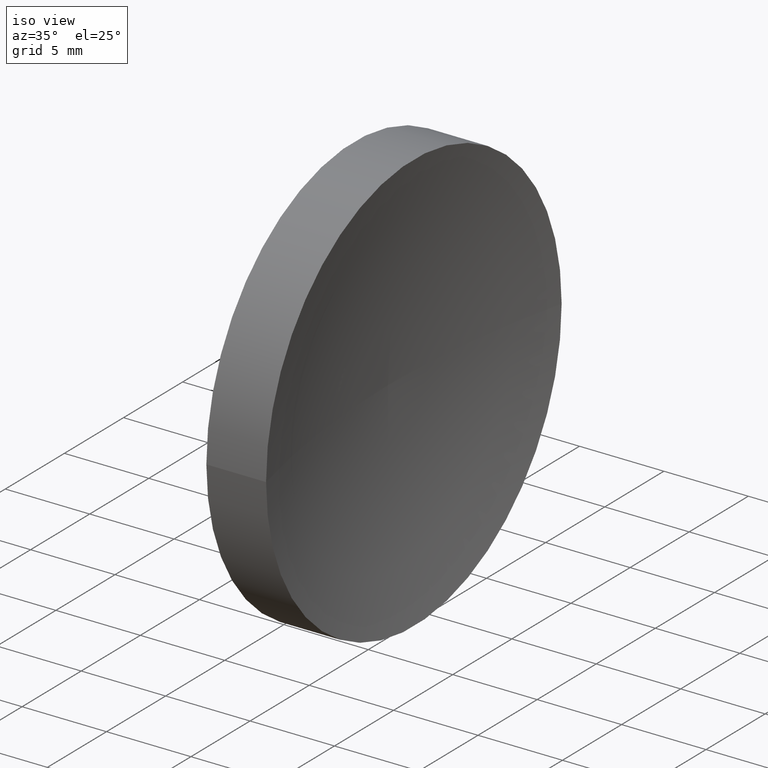
[diagram: clean part render]
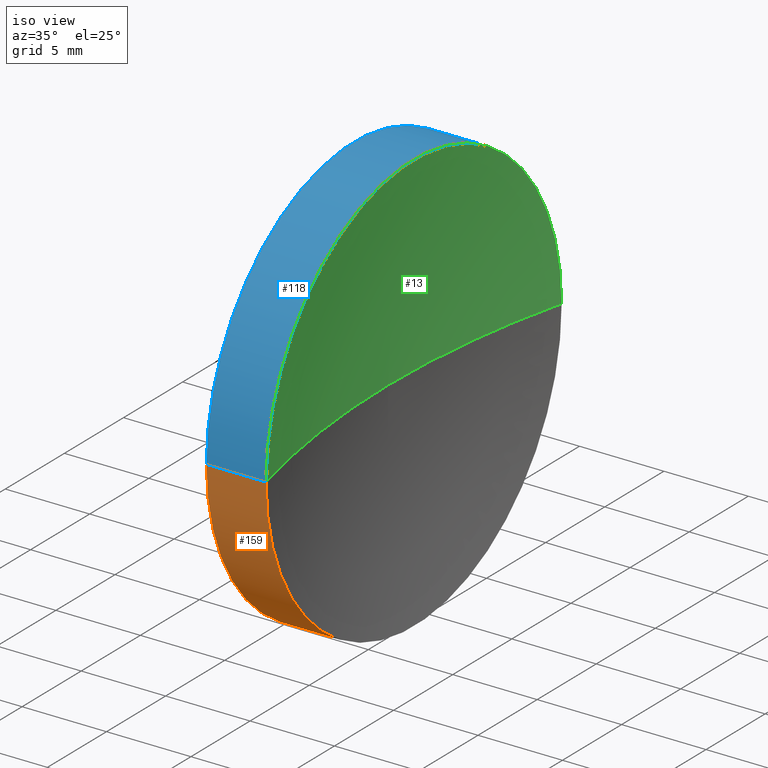
[diagram: same view with three faces highlighted in distinct colors, each labeled with its STEP entity id]
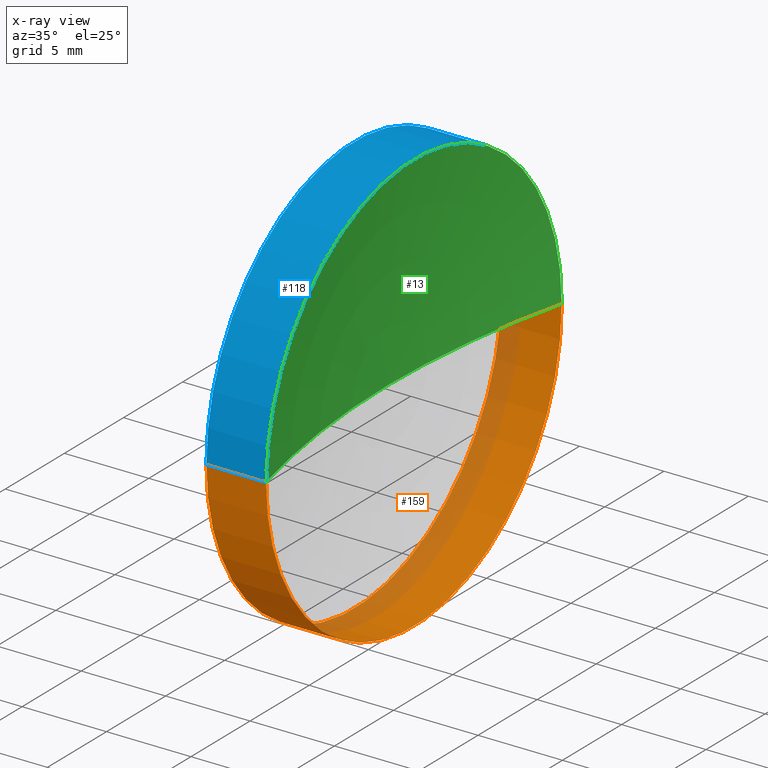
[diagram: x-ray of the same camera — body ghosted, the three highlighted faces saturated]
A machine part, iso view with three faces highlighted in distinct colors.
The next image is the same camera in x-ray (body ghosted, the three faces saturated) — at least one of them is partly hidden behind the body in this view.
Their STEP definitions:

[orange] entity #159 — the highlighted cylindrical surface (partial cylindrical patch) has radius 12.5 mm, axis along (-1, 0, -0).
#16 = CARTESIAN_POINT ( 'NONE',  ( 55.00739462442118800, 45.07872591329309100, 1.530808498934191500E-015 ) ) ;
#17 = CYLINDRICAL_SURFACE ( 'NONE', #65, 12.50000000000000000 ) ;
#20 = EDGE_LOOP ( 'NONE', ( #100, #132, #155, #39 ) ) ;
#21 = DIRECTION ( 'NONE',  ( -1.000000000000000000, 7.636108817321419600E-016, -0.0000000000000000000 ) ) ;
#26 = FACE_OUTER_BOUND ( 'NONE', #20, .T. ) ;
#28 = CIRCLE ( 'NONE', #152, 12.50000000000000400 ) ;
#31 = CARTESIAN_POINT ( 'NONE',  ( 57.35819015802111000, 32.57872591329309800, 0.0000000000000000000 ) ) ;
#32 = DIRECTION ( 'NONE',  ( -5.551115123125784700E-016, -1.000000000000000000, 0.0000000000000000000 ) ) ;
#35 = CARTESIAN_POINT ( 'NONE',  ( 60.89443551505594600, 45.07872591329309800, 1.530808498934192300E-015 ) ) ;
#36 = EDGE_CURVE ( 'NONE', #94, #99, #165, .T. ) ;
#39 = ORIENTED_EDGE ( 'NONE', *, *, #46, .F. ) ;
#46 = EDGE_CURVE ( 'NONE', #128, #99, #59, .T. ) ;
#50 = DIRECTION ( 'NONE',  ( -5.551115123125780700E-016, -1.000000000000000000, 0.0000000000000000000 ) ) ;
#52 = CARTESIAN_POINT ( 'NONE',  ( 60.89443551505593200, 20.07872591329308100, 0.0000000000000000000 ) ) ;
#56 = LINE ( 'NONE', #16, #156 ) ;
#57 = AXIS2_PLACEMENT_3D ( 'NONE', #31, #139, #32 ) ;
#59 = CIRCLE ( 'NONE', #57, 12.49999999999999600 ) ;
#65 = AXIS2_PLACEMENT_3D ( 'NONE', #164, #98, #83 ) ;
#68 = DIRECTION ( 'NONE',  ( -1.000000000000000000, 7.636108817321419600E-016, -0.0000000000000000000 ) ) ;
#76 = CARTESIAN_POINT ( 'NONE',  ( 55.00739462442117400, 20.07872591329309500, 0.0000000000000000000 ) ) ;
#83 = DIRECTION ( 'NONE',  ( -5.551115123125782700E-016, -1.000000000000000000, 0.0000000000000000000 ) ) ;
#92 = VECTOR ( 'NONE', #21, 1000.000000000000000 ) ;
#94 = VERTEX_POINT ( 'NONE', #52 ) ;
#98 = DIRECTION ( 'NONE',  ( -1.000000000000000000, 7.636108817321419600E-016, -0.0000000000000000000 ) ) ;
#99 = VERTEX_POINT ( 'NONE', #137 ) ;
#100 = ORIENTED_EDGE ( 'NONE', *, *, #146, .F. ) ;
#102 = EDGE_CURVE ( 'NONE', #135, #94, #28, .T. ) ;
#107 = DIRECTION ( 'NONE',  ( -1.000000000000000000, 7.636108817321419600E-016, -0.0000000000000000000 ) ) ;
#120 = CARTESIAN_POINT ( 'NONE',  ( 60.89443551505593900, 32.57872591329309100, 0.0000000000000000000 ) ) ;
#128 = VERTEX_POINT ( 'NONE', #150 ) ;
#132 = ORIENTED_EDGE ( 'NONE', *, *, #102, .T. ) ;
#135 = VERTEX_POINT ( 'NONE', #35 ) ;
#137 = CARTESIAN_POINT ( 'NONE',  ( 57.35819015802110200, 20.07872591329309800, 0.0000000000000000000 ) ) ;
#139 = DIRECTION ( 'NONE',  ( -1.000000000000000000, 7.636108817321419600E-016, -0.0000000000000000000 ) ) ;
#146 = EDGE_CURVE ( 'NONE', #135, #128, #56, .T. ) ;
#150 = CARTESIAN_POINT ( 'NONE',  ( 57.35819015802111700, 45.07872591329309100, 1.530808498934191900E-015 ) ) ;
#152 = AXIS2_PLACEMENT_3D ( 'NONE', #120, #68, #50 ) ;
#155 = ORIENTED_EDGE ( 'NONE', *, *, #36, .T. ) ;
#156 = VECTOR ( 'NONE', #107, 1000.000000000000000 ) ;
#159 = ADVANCED_FACE ( 'NONE', ( #26 ), #17, .T. ) ;
#164 = CARTESIAN_POINT ( 'NONE',  ( 55.00739462442118100, 32.57872591329309800, 0.0000000000000000000 ) ) ;
#165 = LINE ( 'NONE', #76, #92 ) ;

[blue] entity #118 — the highlighted cylindrical surface (partial cylindrical patch) has radius 12.5 mm, axis along (-1, 0, -0).
#15 = DIRECTION ( 'NONE',  ( -5.551115123125782700E-016, -1.000000000000000000, 0.0000000000000000000 ) ) ;
#16 = CARTESIAN_POINT ( 'NONE',  ( 55.00739462442118800, 45.07872591329309100, 1.530808498934191500E-015 ) ) ;
#18 = AXIS2_PLACEMENT_3D ( 'NONE', #69, #162, #15 ) ;
#21 = DIRECTION ( 'NONE',  ( -1.000000000000000000, 7.636108817321419600E-016, -0.0000000000000000000 ) ) ;
#23 = ORIENTED_EDGE ( 'NONE', *, *, #36, .F. ) ;
#29 = CIRCLE ( 'NONE', #58, 12.49999999999999600 ) ;
#35 = CARTESIAN_POINT ( 'NONE',  ( 60.89443551505594600, 45.07872591329309800, 1.530808498934192300E-015 ) ) ;
#36 = EDGE_CURVE ( 'NONE', #94, #99, #165, .T. ) ;
#42 = DIRECTION ( 'NONE',  ( -5.551115123125780700E-016, -1.000000000000000000, 0.0000000000000000000 ) ) ;
#47 = FACE_OUTER_BOUND ( 'NONE', #51, .T. ) ;
#51 = EDGE_LOOP ( 'NONE', ( #80, #153, #85, #23 ) ) ;
#52 = CARTESIAN_POINT ( 'NONE',  ( 60.89443551505593200, 20.07872591329308100, 0.0000000000000000000 ) ) ;
#53 = CARTESIAN_POINT ( 'NONE',  ( 57.35819015802111000, 32.57872591329309800, 0.0000000000000000000 ) ) ;
#56 = LINE ( 'NONE', #16, #156 ) ;
#58 = AXIS2_PLACEMENT_3D ( 'NONE', #53, #147, #96 ) ;
#64 = AXIS2_PLACEMENT_3D ( 'NONE', #138, #82, #42 ) ;
#69 = CARTESIAN_POINT ( 'NONE',  ( 55.00739462442118100, 32.57872591329309800, 0.0000000000000000000 ) ) ;
#76 = CARTESIAN_POINT ( 'NONE',  ( 55.00739462442117400, 20.07872591329309500, 0.0000000000000000000 ) ) ;
#80 = ORIENTED_EDGE ( 'NONE', *, *, #89, .T. ) ;
#82 = DIRECTION ( 'NONE',  ( -1.000000000000000000, 7.636108817321419600E-016, -0.0000000000000000000 ) ) ;
#85 = ORIENTED_EDGE ( 'NONE', *, *, #115, .F. ) ;
#89 = EDGE_CURVE ( 'NONE', #94, #135, #93, .T. ) ;
#90 = CYLINDRICAL_SURFACE ( 'NONE', #18, 12.50000000000000000 ) ;
#92 = VECTOR ( 'NONE', #21, 1000.000000000000000 ) ;
#93 = CIRCLE ( 'NONE', #64, 12.50000000000000400 ) ;
#94 = VERTEX_POINT ( 'NONE', #52 ) ;
#96 = DIRECTION ( 'NONE',  ( -5.551115123125784700E-016, -1.000000000000000000, 0.0000000000000000000 ) ) ;
#99 = VERTEX_POINT ( 'NONE', #137 ) ;
#107 = DIRECTION ( 'NONE',  ( -1.000000000000000000, 7.636108817321419600E-016, -0.0000000000000000000 ) ) ;
#115 = EDGE_CURVE ( 'NONE', #99, #128, #29, .T. ) ;
#118 = ADVANCED_FACE ( 'NONE', ( #47 ), #90, .T. ) ;
#128 = VERTEX_POINT ( 'NONE', #150 ) ;
#135 = VERTEX_POINT ( 'NONE', #35 ) ;
#137 = CARTESIAN_POINT ( 'NONE',  ( 57.35819015802110200, 20.07872591329309800, 0.0000000000000000000 ) ) ;
#138 = CARTESIAN_POINT ( 'NONE',  ( 60.89443551505593900, 32.57872591329309100, 0.0000000000000000000 ) ) ;
#146 = EDGE_CURVE ( 'NONE', #135, #128, #56, .T. ) ;
#147 = DIRECTION ( 'NONE',  ( -1.000000000000000000, 7.636108817321419600E-016, -0.0000000000000000000 ) ) ;
#150 = CARTESIAN_POINT ( 'NONE',  ( 57.35819015802111700, 45.07872591329309100, 1.530808498934191900E-015 ) ) ;
#153 = ORIENTED_EDGE ( 'NONE', *, *, #146, .T. ) ;
#156 = VECTOR ( 'NONE', #107, 1000.000000000000000 ) ;
#162 = DIRECTION ( 'NONE',  ( -1.000000000000000000, 7.636108817321419600E-016, -0.0000000000000000000 ) ) ;
#165 = LINE ( 'NONE', #76, #92 ) ;

[green] entity #13 — the highlighted toroidal blend (fillet) surface has major radius 0.0021 mm and minor (blend) radius 51.64 mm.
#4 = EDGE_LOOP ( 'NONE', ( #101, #72, #66 ) ) ;
#7 = CARTESIAN_POINT ( 'NONE',  ( 110.9981901286809900, 32.57659115087562200, -2.614329961451197500E-019 ) ) ;
#11 = AXIS2_PLACEMENT_3D ( 'NONE', #7, #81, #149 ) ;
#13 = ADVANCED_FACE ( 'NONE', ( #73 ), #130, .F. ) ;
#24 = CIRCLE ( 'NONE', #11, 51.64000000000000800 ) ;
#35 = CARTESIAN_POINT ( 'NONE',  ( 60.89443551505594600, 45.07872591329309800, 1.530808498934192300E-015 ) ) ;
#38 = EDGE_CURVE ( 'NONE', #94, #109, #87, .T. ) ;
#41 = CARTESIAN_POINT ( 'NONE',  ( 110.9981901286809900, 32.58086067571049000, 0.0000000000000000000 ) ) ;
#42 = DIRECTION ( 'NONE',  ( -5.551115123125780700E-016, -1.000000000000000000, 0.0000000000000000000 ) ) ;
#52 = CARTESIAN_POINT ( 'NONE',  ( 60.89443551505593200, 20.07872591329308100, 0.0000000000000000000 ) ) ;
#54 = CARTESIAN_POINT ( 'NONE',  ( 59.35819017280580600, 32.57872591329309800, 0.0000000000000000000 ) ) ;
#64 = AXIS2_PLACEMENT_3D ( 'NONE', #138, #82, #42 ) ;
#66 = ORIENTED_EDGE ( 'NONE', *, *, #38, .T. ) ;
#67 = DIRECTION ( 'NONE',  ( -1.000000000000000000, 0.0000000000000000000, 0.0000000000000000000 ) ) ;
#72 = ORIENTED_EDGE ( 'NONE', *, *, #89, .F. ) ;
#73 = FACE_OUTER_BOUND ( 'NONE', #4, .T. ) ;
#77 = DIRECTION ( 'NONE',  ( -7.636108817321419600E-016, -1.000000000000000000, 0.0000000000000000000 ) ) ;
#79 = AXIS2_PLACEMENT_3D ( 'NONE', #129, #143, #77 ) ;
#81 = DIRECTION ( 'NONE',  ( -9.351536221073556900E-032, -1.224646799147353200E-016, 1.000000000000000000 ) ) ;
#82 = DIRECTION ( 'NONE',  ( -1.000000000000000000, 7.636108817321419600E-016, -0.0000000000000000000 ) ) ;
#87 = CIRCLE ( 'NONE', #126, 51.64000000000000800 ) ;
#89 = EDGE_CURVE ( 'NONE', #94, #135, #93, .T. ) ;
#93 = CIRCLE ( 'NONE', #64, 12.50000000000000400 ) ;
#94 = VERTEX_POINT ( 'NONE', #52 ) ;
#101 = ORIENTED_EDGE ( 'NONE', *, *, #110, .F. ) ;
#109 = VERTEX_POINT ( 'NONE', #54 ) ;
#110 = EDGE_CURVE ( 'NONE', #135, #109, #24, .T. ) ;
#126 = AXIS2_PLACEMENT_3D ( 'NONE', #41, #140, #67 ) ;
#129 = CARTESIAN_POINT ( 'NONE',  ( 110.9981901286809900, 32.57872591329305600, 0.0000000000000000000 ) ) ;
#130 = TOROIDAL_SURFACE ( 'NONE', #79, -0.002134762417434476400, 51.64000000000000800 ) ;
#135 = VERTEX_POINT ( 'NONE', #35 ) ;
#138 = CARTESIAN_POINT ( 'NONE',  ( 60.89443551505593900, 32.57872591329309100, 0.0000000000000000000 ) ) ;
#140 = DIRECTION ( 'NONE',  ( 0.0000000000000000000, -0.0000000000000000000, -1.000000000000000000 ) ) ;
#143 = DIRECTION ( 'NONE',  ( -1.000000000000000000, 7.636108817321419600E-016, -0.0000000000000000000 ) ) ;
#149 = DIRECTION ( 'NONE',  ( 0.0000000000000000000, -1.000000000000000000, -1.224646799147353200E-016 ) ) ;